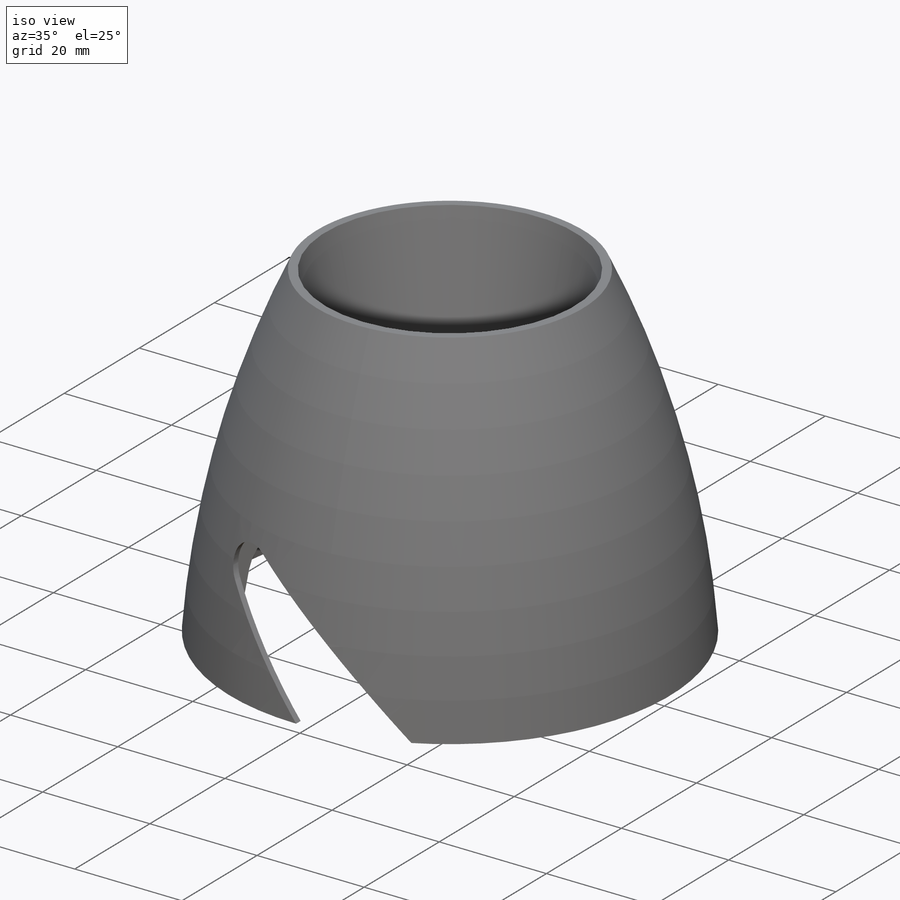
[diagram: iso view]
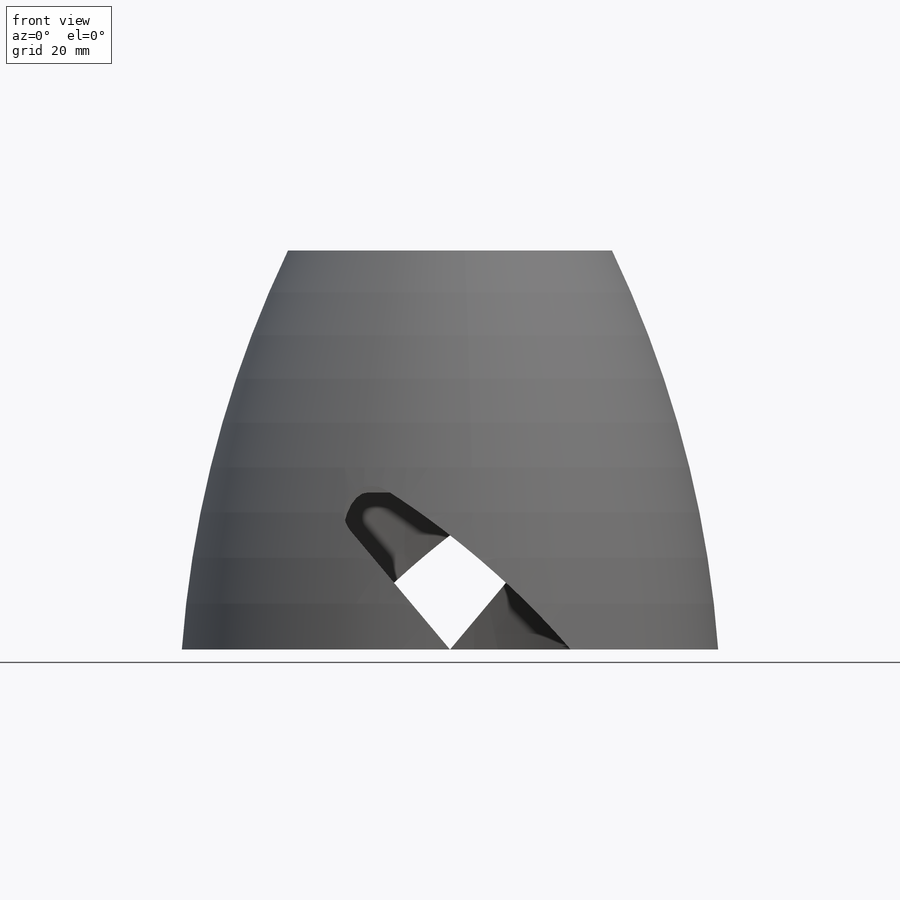
[diagram: front view]
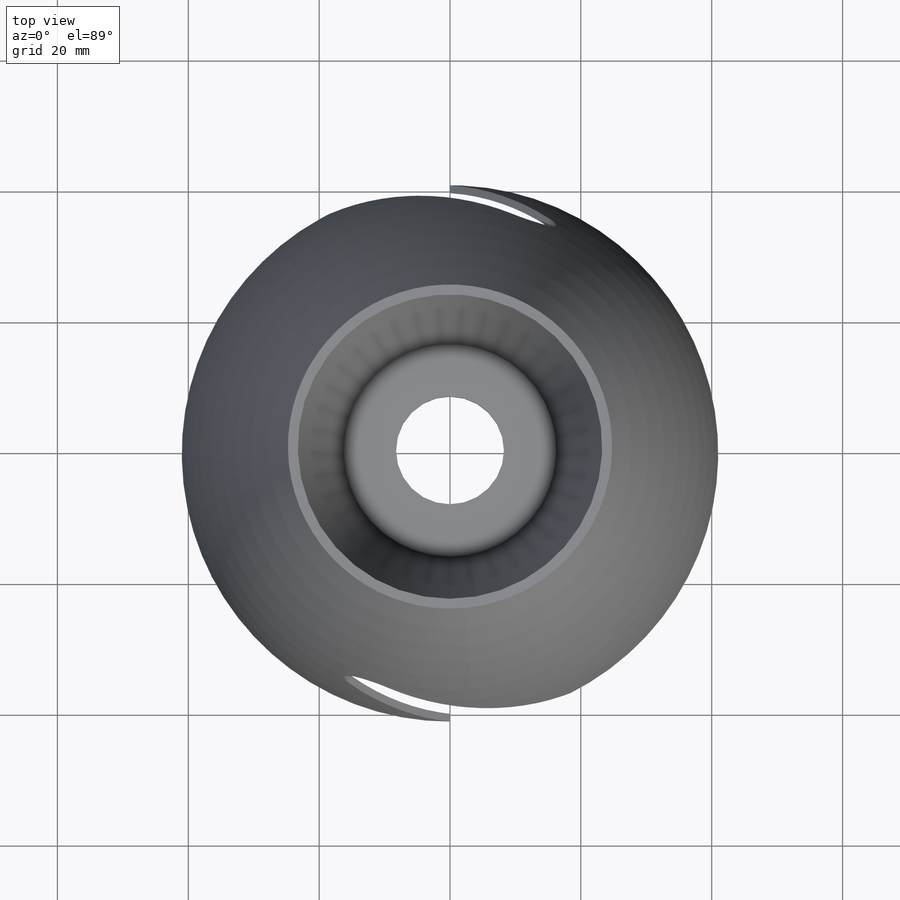
[diagram: top view]
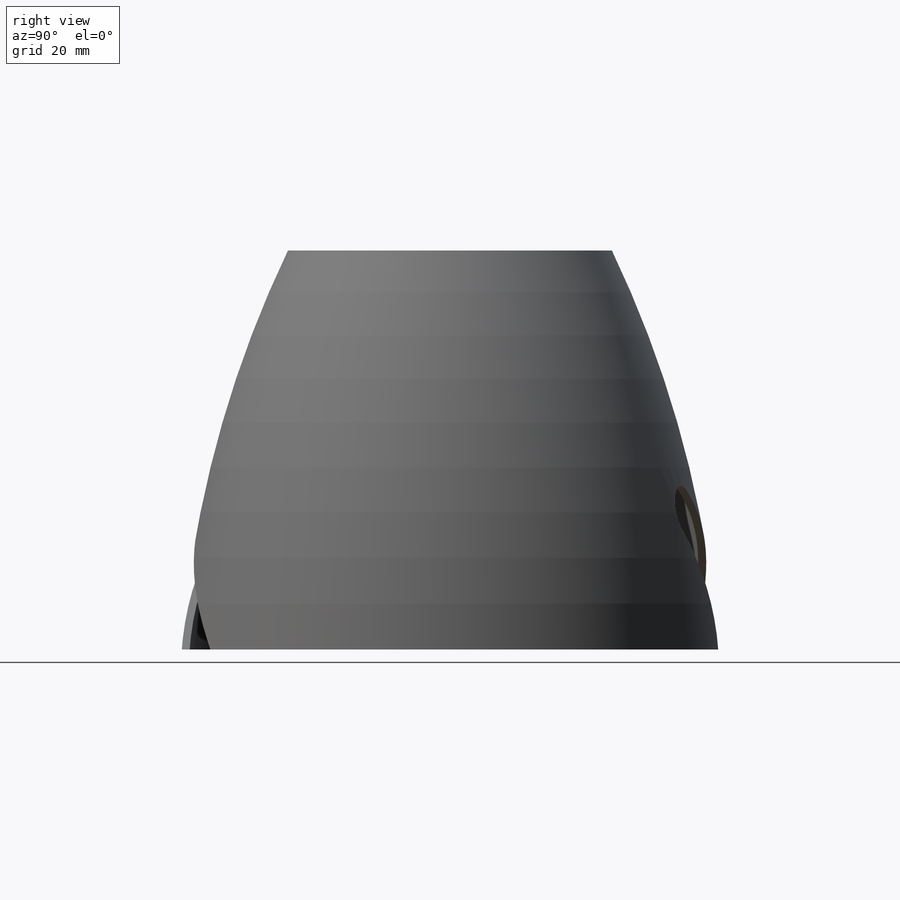
[diagram: right view]
SOLIDWORKS PART (.sldprt)
format: sldprt  version: not decoded by parser v0  size: 549,376 bytes
history: native  units: mm
features: sketch x7, plane x3, cut_extrude x3, extrude x3, pattern_circular x2, fillet x2, material x1, revolve x1, shell x1 + 3 further entries (+10 scaffold rows collapsed)
feature tree (36):
  scaffold x10  (default folders/planes/origin — collapsed)
  material  "재질 <지정안함>"
  "곡면 바디"
  "솔리드 바디"
  plane  "정면"
  plane  "윗면"
  plane  "우측면"
  "원점"
  sketch  "스케치1"  dims[c1.D5=110.0mm c1.D4=115.0mm c2.D5=170.0mm c2.D1=41.0mm c2.D2=94.0mm c2.D3=57.75mm c2.D4=~23.619879mm c3.D5=~24.448165mm c3.D4=3.0mm c3.D6=~25.284096mm c3.D2=61.0mm c3.D3=~12.453199mm c4.D4=~24.768927mm]
  revolve  "회전1"  Angle=360deg
  sketch  "스케치2"  dims[D1=1.5mm]
  cut_extrude  "돌출1"  Depth=33mm
  shell  "쉘1"  Thickness=1.2mm
  sketch  "스케치5"  dims[D1=0.0mm]
  extrude  "돌출4"  Depth=1mm
  sketch  "스케치3"  dims[D1=16.5mm]
  cut_extrude  "돌출2"  Depth=40mm
  sketch  "스케치4"  dims[c1.D2=8.0mm c1.D1=130.0mm c1.D5=4.0mm c2.D1=14.0mm c2.D3=~14.209858mm c3.D3=50.0deg c3.D4=~8.081881mm c4.D4=90.0deg c4.D5=20.0mm c4.D6=25.0mm c4.D1=~16.464466mm c5.D1=5.0deg c5.D7=14.0mm c5.D8=~15.343146mm c5.D5=~15.343146mm c5.D2=12.0mm c6.D5=20.0mm]
  cut_extrude  "돌출3"  Depth=50mm
  pattern_circular  "원형 패턴3"  Count=2 Angle=180deg
  fillet  "필렛4"  Radius=1mm
  sketch  "스케치7"  dims[c1.D9=8.0mm c1.D5=2.0mm c1.D6=~33.278464mm c1.D3=3.0mm c1.D7=33.0mm c1.D8=9.0mm c2.D7=9.0mm c2.D8=33.0mm c2.D10=0.5mm c2.D5=4.0mm c2.D1=0.5mm c2.D2=0.5mm c2.D3=3.0mm c2.D4=2.0mm c2.D6=0.5mm]
  extrude  "돌출5"  Depth=1.5mm
  fillet  "필렛3"  Radius=1mm
  pattern_circular  "원형 패턴4"  Count=6 Angle=60deg
  sketch  "스케치8"  dims[D1=22.0mm D2=16.5mm]
  extrude  "돌출6"  Depth=1.8mm
decode coverage: 19 of 19 modeling features carry decoded parameters; 3 rows unclassified (native names shown)
note: ~ marks probable driven/reference dimensions
note: suppression state not decoded; provenance and decode notes live in map.json
